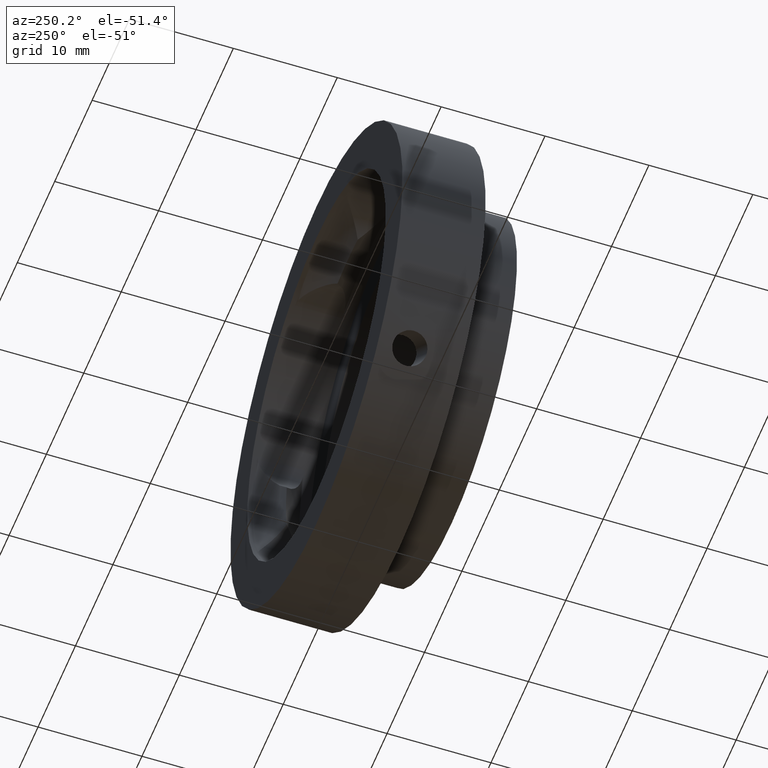
[diagram: clean part render]
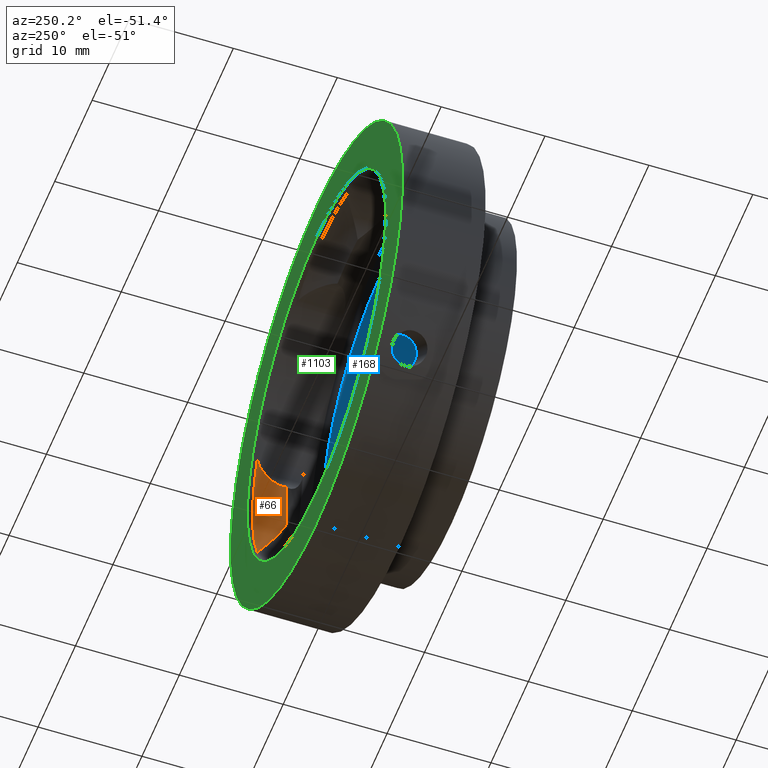
[diagram: same view with three faces highlighted in distinct colors, each labeled with its STEP entity id]
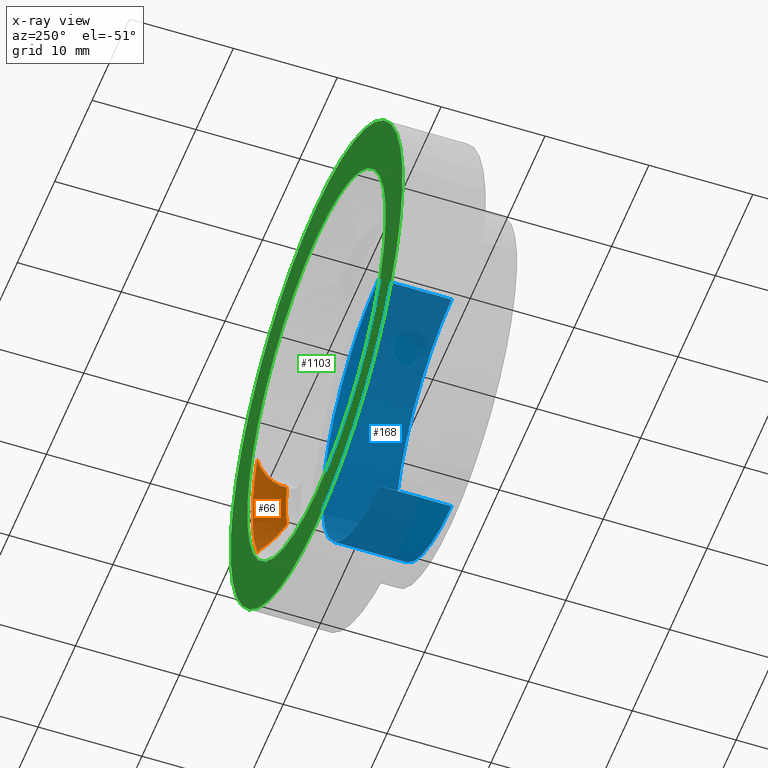
[diagram: x-ray of the same camera — body ghosted, the three highlighted faces saturated]
A machine part, auxiliary view with three faces highlighted in distinct colors.
The next image is the same camera in x-ray (body ghosted, the three faces saturated) — at least one of them is partly hidden behind the body in this view.
Their STEP definitions:

[orange] entity #66 — the highlighted toroidal blend (fillet) surface has major radius 14.6376 mm and minor (blend) radius 4 mm.
#5 = CARTESIAN_POINT ( 'NONE',  ( 17.36340583699443500, 3.269522945828823500, 6.189832400947930900 ) ) ;
#27 = ORIENTED_EDGE ( 'NONE', *, *, #975, .F. ) ;
#65 = CARTESIAN_POINT ( 'NONE',  ( 17.25436046013609500, 2.071636449859518300, -4.342260360355066200 ) ) ;
#66 = ADVANCED_FACE ( 'NONE', ( #1219 ), #122, .F. ) ;
#85 = VERTEX_POINT ( 'NONE', #407 ) ;
#100 = CARTESIAN_POINT ( 'NONE',  ( 17.13059303483644400, 1.831773841888893800, 3.990437708296160000 ) ) ;
#117 = DIRECTION ( 'NONE',  ( -0.0000000000000000000, 1.000000000000000000, -0.0000000000000000000 ) ) ;
#122 = TOROIDAL_SURFACE ( 'NONE', #361, 14.63755391998808100, 4.000000000000000000 ) ;
#127 = CARTESIAN_POINT ( 'NONE',  ( 0.0000000000000000000, 4.536678175484937900, 0.0000000000000000000 ) ) ;
#153 = CARTESIAN_POINT ( 'NONE',  ( 16.79154448145637000, 1.376648082875351800, -3.309383978498544800 ) ) ;
#159 = CARTESIAN_POINT ( 'NONE',  ( 16.56711234315650600, 1.172054448431502300, -2.991469206254887800 ) ) ;
#166 = EDGE_CURVE ( 'NONE', #817, #358, #218, .T. ) ;
#218 = CIRCLE ( 'NONE', #876, 18.50000000000000400 ) ;
#244 = CARTESIAN_POINT ( 'NONE',  ( 17.37573465897290200, 2.439475657725489500, -4.878601936514678000 ) ) ;
#249 = CARTESIAN_POINT ( 'NONE',  ( 17.39208216788538100, 3.160417594367911600, -5.994942858208657000 ) ) ;
#256 = CARTESIAN_POINT ( 'NONE',  ( 16.42080530397895900, 1.083257676839831200, 2.841928745961724200 ) ) ;
#278 = CARTESIAN_POINT ( 'NONE',  ( 17.29381032218392300, 3.396654395817721600, 6.492012457404842800 ) ) ;
#290 = CARTESIAN_POINT ( 'NONE',  ( 17.39181581353226800, 3.161636105778478500, 5.997083040570745800 ) ) ;
#343 = CARTESIAN_POINT ( 'NONE',  ( 17.29443141156205900, 3.395764499672386400, -6.489612686074753600 ) ) ;
#358 = VERTEX_POINT ( 'NONE', #1012 ) ;
#361 = AXIS2_PLACEMENT_3D ( 'NONE', #127, #508, #976 ) ;
#370 = CARTESIAN_POINT ( 'NONE',  ( 17.16345939657726300, 3.496721311475400100, 6.904947751138479400 ) ) ;
#375 = CARTESIAN_POINT ( 'NONE',  ( 17.12086125011016300, 3.496721311475400600, 7.009002072654589600 ) ) ;
#380 = CARTESIAN_POINT ( 'NONE',  ( 17.42277220393309300, 2.810386111617963100, 5.429985369823798500 ) ) ;
#392 = DIRECTION ( 'NONE',  ( 0.0000000000000000000, 0.0000000000000000000, 1.000000000000000000 ) ) ;
#407 = CARTESIAN_POINT ( 'NONE',  ( 16.27822264955754900, 0.9967213114754017700, -2.696194980232658400 ) ) ;
#418 = VERTEX_POINT ( 'NONE', #722 ) ;
#436 = CARTESIAN_POINT ( 'NONE',  ( 16.27822264955754900, 0.9967213114754017700, -2.696194980232658400 ) ) ;
#443 = CARTESIAN_POINT ( 'NONE',  ( 17.12086125011016300, 3.496721311475400600, -7.009002072654589600 ) ) ;
#467 = CARTESIAN_POINT ( 'NONE',  ( 16.55061297075514700, 1.179423159652337200, 2.997086635570533500 ) ) ;
#470 = CARTESIAN_POINT ( 'NONE',  ( 17.42170559750249500, 2.932331705851900100, 5.616708695620792100 ) ) ;
#476 = ORIENTED_EDGE ( 'NONE', *, *, #166, .T. ) ;
#484 = CARTESIAN_POINT ( 'NONE',  ( 17.26637112657476800, 3.432225387919169100, 6.593454132979299100 ) ) ;
#502 = DIRECTION ( 'NONE',  ( -0.0000000000000000000, 1.000000000000000000, -0.0000000000000000000 ) ) ;
#508 = DIRECTION ( 'NONE',  ( -0.0000000000000000000, 1.000000000000000000, -0.0000000000000000000 ) ) ;
#514 = CARTESIAN_POINT ( 'NONE',  ( 0.0000000000000000000, 3.496721311475400600, 0.0000000000000000000 ) ) ;
#542 = CARTESIAN_POINT ( 'NONE',  ( 17.26663287005815300, 3.431996719209195100, -6.592597498048188100 ) ) ;
#543 = CARTESIAN_POINT ( 'NONE',  ( 17.20134099735957300, 3.482493921932077200, -6.799716323677683900 ) ) ;
#588 = CARTESIAN_POINT ( 'NONE',  ( 0.0000000000000000000, 0.9967213114754017700, 0.0000000000000000000 ) ) ;
#596 = EDGE_LOOP ( 'NONE', ( #27, #1210, #476, #847 ) ) ;
#626 = CARTESIAN_POINT ( 'NONE',  ( 17.16304562249889200, 3.496721311475398800, -6.905958475420088200 ) ) ;
#633 = CARTESIAN_POINT ( 'NONE',  ( 17.13010007589782500, 1.830906347312718700, -3.989161027966543000 ) ) ;
#661 = CARTESIAN_POINT ( 'NONE',  ( 16.88157682170986400, 1.491401494846170500, 3.481859580618646500 ) ) ;
#666 = CARTESIAN_POINT ( 'NONE',  ( 17.40005995960788400, 2.565497703908632900, 5.062972195141791000 ) ) ;
#707 = CIRCLE ( 'NONE', #861, 16.50000000000000400 ) ;
#719 = CARTESIAN_POINT ( 'NONE',  ( 17.36391773417061300, 3.268089162794297800, -6.187004466313776000 ) ) ;
#722 = CARTESIAN_POINT ( 'NONE',  ( 16.27822264955754900, 0.9967213114754017700, 2.696194980232658400 ) ) ;
#735 = CARTESIAN_POINT ( 'NONE',  ( 17.42273638806526400, 2.808454470466621400, -5.427035956763838000 ) ) ;
#812 = EDGE_CURVE ( 'NONE', #418, #817, #1136, .T. ) ;
#817 = VERTEX_POINT ( 'NONE', #853 ) ;
#845 = CARTESIAN_POINT ( 'NONE',  ( 16.78116720282785200, 1.383803078169443500, 3.317503025158117700 ) ) ;
#847 = ORIENTED_EDGE ( 'NONE', *, *, #1205, .T. ) ;
#853 = CARTESIAN_POINT ( 'NONE',  ( 17.12086125011016300, 3.496721311475400600, 7.009002072654589600 ) ) ;
#856 = CARTESIAN_POINT ( 'NONE',  ( 17.20142613376731000, 3.482401770957626900, 6.799419849856149300 ) ) ;
#861 = AXIS2_PLACEMENT_3D ( 'NONE', #588, #117, #392 ) ;
#876 = AXIS2_PLACEMENT_3D ( 'NONE', #514, #502, #1163 ) ;
#908 = CARTESIAN_POINT ( 'NONE',  ( 17.42176161910858000, 2.931068077787907000, -5.614732754411278400 ) ) ;
#941 = CARTESIAN_POINT ( 'NONE',  ( 17.05630417228517000, 1.715373747438431400, 3.818328121953583800 ) ) ;
#951 = B_SPLINE_CURVE_WITH_KNOTS ( 'NONE', 3,
 ( #443, #626, #543, #542, #343, #719, #249, #908, #735, #1011, #244, #1106, #65, #633, #995, #153, #159, #436 ),
 .UNSPECIFIED., .F., .F.,
 ( 4, 2, 2, 2, 2, 2, 2, 2, 4 ),
 ( 0.02911646445298689300, 0.02945188218109105400, 0.02978729990919521500, 0.03045813536540354500, 0.03112897082161187500, 0.03179980627782020400, 0.03247064173402852700, 0.03314147719023685700, 0.03448314810265350900 ),
 .UNSPECIFIED. ) ;
#975 = EDGE_CURVE ( 'NONE', #418, #85, #707, .T. ) ;
#976 = DIRECTION ( 'NONE',  ( 0.0000000000000000000, 0.0000000000000000000, 1.000000000000000000 ) ) ;
#995 = CARTESIAN_POINT ( 'NONE',  ( 17.05464045493920000, 1.712919933562092800, -3.814683146563612400 ) ) ;
#1011 = CARTESIAN_POINT ( 'NONE',  ( 17.39969678763881700, 2.563154542518793400, -5.059515939409064500 ) ) ;
#1012 = CARTESIAN_POINT ( 'NONE',  ( 17.12086125011016300, 3.496721311475400600, -7.009002072654589600 ) ) ;
#1041 = CARTESIAN_POINT ( 'NONE',  ( 17.30367196314879100, 2.195338139958085100, 4.522256403561802300 ) ) ;
#1106 = CARTESIAN_POINT ( 'NONE',  ( 17.30307122314359000, 2.193752640003353800, -4.519949017221381200 ) ) ;
#1107 = CARTESIAN_POINT ( 'NONE',  ( 16.27822264955754900, 0.9967213114754017700, 2.696194980232658400 ) ) ;
#1136 = B_SPLINE_CURVE_WITH_KNOTS ( 'NONE', 3,
 ( #1107, #256, #467, #845, #661, #941, #100, #1142, #1041, #1137, #666, #380, #470, #290, #5, #278, #484, #856, #370, #375 ),
 .UNSPECIFIED., .F., .F.,
 ( 4, 2, 2, 2, 2, 2, 2, 2, 2, 4 ),
 ( 0.01947316875624090600, 0.02013732411579238100, 0.02080147947534385200, 0.02146563483489532700, 0.02212979019444679900, 0.02279394555399827400, 0.02345810091354974500, 0.02412225627310121700, 0.02445433395287695600, 0.02478641163265269200 ),
 .UNSPECIFIED. ) ;
#1137 = CARTESIAN_POINT ( 'NONE',  ( 17.37627171932059500, 2.441744844110302000, 4.881920887914881200 ) ) ;
#1142 = CARTESIAN_POINT ( 'NONE',  ( 17.25445482783872100, 2.071907201204975300, 4.342653221995735000 ) ) ;
#1163 = DIRECTION ( 'NONE',  ( 0.0000000000000000000, 0.0000000000000000000, 1.000000000000000000 ) ) ;
#1205 = EDGE_CURVE ( 'NONE', #358, #85, #951, .T. ) ;
#1210 = ORIENTED_EDGE ( 'NONE', *, *, #812, .T. ) ;
#1219 = FACE_OUTER_BOUND ( 'NONE', #596, .T. ) ;

[blue] entity #168 — the highlighted cylindrical surface (partial cylindrical patch) has radius 15 mm, axis along (-0, -1, -0).
#58 = VERTEX_POINT ( 'NONE', #794 ) ;
#69 = AXIS2_PLACEMENT_3D ( 'NONE', #636, #733, #832 ) ;
#108 = CIRCLE ( 'NONE', #69, 15.00000000000000000 ) ;
#121 = DIRECTION ( 'NONE',  ( -0.0000000000000000000, -1.000000000000000000, -0.0000000000000000000 ) ) ;
#137 = DIRECTION ( 'NONE',  ( -0.0000000000000000000, -1.000000000000000000, -0.0000000000000000000 ) ) ;
#161 = DIRECTION ( 'NONE',  ( 0.0000000000000000000, 0.0000000000000000000, -1.000000000000000000 ) ) ;
#168 = ADVANCED_FACE ( 'NONE', ( #1130 ), #711, .F. ) ;
#207 = VERTEX_POINT ( 'NONE', #808 ) ;
#250 = ORIENTED_EDGE ( 'NONE', *, *, #300, .F. ) ;
#300 = EDGE_CURVE ( 'NONE', #1149, #207, #609, .T. ) ;
#301 = CARTESIAN_POINT ( 'NONE',  ( 0.0000000000000000000, 0.0000000000000000000, 0.0000000000000000000 ) ) ;
#324 = ORIENTED_EDGE ( 'NONE', *, *, #544, .F. ) ;
#357 = DIRECTION ( 'NONE',  ( -0.0000000000000000000, -1.000000000000000000, -0.0000000000000000000 ) ) ;
#368 = VECTOR ( 'NONE', #678, 1000.000000000000000 ) ;
#404 = DIRECTION ( 'NONE',  ( 0.0000000000000000000, 0.0000000000000000000, -1.000000000000000000 ) ) ;
#447 = CARTESIAN_POINT ( 'NONE',  ( 0.0000000000000000000, -2.003278688524599000, 0.0000000000000000000 ) ) ;
#451 = VERTEX_POINT ( 'NONE', #488 ) ;
#464 = ORIENTED_EDGE ( 'NONE', *, *, #928, .T. ) ;
#488 = CARTESIAN_POINT ( 'NONE',  ( 0.0000000000000000000, -9.003278688524599000, -15.00000000000000000 ) ) ;
#544 = EDGE_CURVE ( 'NONE', #207, #58, #640, .T. ) ;
#609 = CIRCLE ( 'NONE', #1151, 15.00000000000000000 ) ;
#636 = CARTESIAN_POINT ( 'NONE',  ( 0.0000000000000000000, -9.003278688524599000, 0.0000000000000000000 ) ) ;
#640 = LINE ( 'NONE', #881, #957 ) ;
#678 = DIRECTION ( 'NONE',  ( -0.0000000000000000000, -1.000000000000000000, -0.0000000000000000000 ) ) ;
#694 = CARTESIAN_POINT ( 'NONE',  ( 0.0000000000000000000, -2.003278688524599000, -15.00000000000000000 ) ) ;
#711 = CYLINDRICAL_SURFACE ( 'NONE', #937, 15.00000000000000000 ) ;
#733 = DIRECTION ( 'NONE',  ( -0.0000000000000000000, -1.000000000000000000, -0.0000000000000000000 ) ) ;
#774 = EDGE_CURVE ( 'NONE', #451, #58, #108, .T. ) ;
#794 = CARTESIAN_POINT ( 'NONE',  ( 1.836970198721029600E-015, -9.003278688524599000, 15.00000000000000000 ) ) ;
#808 = CARTESIAN_POINT ( 'NONE',  ( 1.836970198721029600E-015, -2.003278688524599000, 15.00000000000000000 ) ) ;
#832 = DIRECTION ( 'NONE',  ( 0.0000000000000000000, 0.0000000000000000000, -1.000000000000000000 ) ) ;
#877 = ORIENTED_EDGE ( 'NONE', *, *, #774, .T. ) ;
#878 = CARTESIAN_POINT ( 'NONE',  ( 0.0000000000000000000, 0.0000000000000000000, -15.00000000000000000 ) ) ;
#881 = CARTESIAN_POINT ( 'NONE',  ( 1.836970198721029600E-015, 0.0000000000000000000, 15.00000000000000000 ) ) ;
#928 = EDGE_CURVE ( 'NONE', #1149, #451, #1016, .T. ) ;
#937 = AXIS2_PLACEMENT_3D ( 'NONE', #301, #121, #404 ) ;
#957 = VECTOR ( 'NONE', #137, 1000.000000000000000 ) ;
#1016 = LINE ( 'NONE', #878, #368 ) ;
#1130 = FACE_OUTER_BOUND ( 'NONE', #1148, .T. ) ;
#1148 = EDGE_LOOP ( 'NONE', ( #324, #250, #464, #877 ) ) ;
#1149 = VERTEX_POINT ( 'NONE', #694 ) ;
#1151 = AXIS2_PLACEMENT_3D ( 'NONE', #447, #357, #161 ) ;

[green] entity #1103 — the highlighted planar face has unit normal (0, -1, -0).
#28 = DIRECTION ( 'NONE',  ( 0.0000000000000000000, 0.0000000000000000000, -1.000000000000000000 ) ) ;
#54 = EDGE_CURVE ( 'NONE', #360, #614, #989, .T. ) ;
#59 = DIRECTION ( 'NONE',  ( 0.0000000000000000000, 0.0000000000000000000, -1.000000000000000000 ) ) ;
#126 = ORIENTED_EDGE ( 'NONE', *, *, #608, .T. ) ;
#176 = CARTESIAN_POINT ( 'NONE',  ( 2.265596578422603400E-015, 3.996721311475401900, 18.50000000000000000 ) ) ;
#192 = AXIS2_PLACEMENT_3D ( 'NONE', #979, #587, #779 ) ;
#201 = CIRCLE ( 'NONE', #416, 23.00000000000000000 ) ;
#231 = FACE_OUTER_BOUND ( 'NONE', #430, .T. ) ;
#288 = AXIS2_PLACEMENT_3D ( 'NONE', #419, #326, #515 ) ;
#293 = CIRCLE ( 'NONE', #748, 18.50000000000000000 ) ;
#304 = ORIENTED_EDGE ( 'NONE', *, *, #54, .F. ) ;
#311 = DIRECTION ( 'NONE',  ( -0.0000000000000000000, -1.000000000000000000, -0.0000000000000000000 ) ) ;
#326 = DIRECTION ( 'NONE',  ( -0.0000000000000000000, -1.000000000000000000, -0.0000000000000000000 ) ) ;
#360 = VERTEX_POINT ( 'NONE', #1202 ) ;
#416 = AXIS2_PLACEMENT_3D ( 'NONE', #603, #311, #610 ) ;
#417 = DIRECTION ( 'NONE',  ( 0.0000000000000000000, -1.000000000000000000, -0.0000000000000000000 ) ) ;
#419 = CARTESIAN_POINT ( 'NONE',  ( 0.0000000000000000000, 3.996721311475401900, 0.0000000000000000000 ) ) ;
#430 = EDGE_LOOP ( 'NONE', ( #479, #304 ) ) ;
#437 = EDGE_CURVE ( 'NONE', #873, #788, #293, .T. ) ;
#479 = ORIENTED_EDGE ( 'NONE', *, *, #1108, .F. ) ;
#493 = CARTESIAN_POINT ( 'NONE',  ( 0.0000000000000000000, 3.996721311475401900, 0.0000000000000000000 ) ) ;
#515 = DIRECTION ( 'NONE',  ( 0.0000000000000000000, 0.0000000000000000000, -1.000000000000000000 ) ) ;
#536 = CIRCLE ( 'NONE', #288, 18.50000000000000000 ) ;
#587 = DIRECTION ( 'NONE',  ( -0.0000000000000000000, -1.000000000000000000, -0.0000000000000000000 ) ) ;
#603 = CARTESIAN_POINT ( 'NONE',  ( 0.0000000000000000000, 3.996721311475401000, 0.0000000000000000000 ) ) ;
#608 = EDGE_CURVE ( 'NONE', #788, #873, #536, .T. ) ;
#610 = DIRECTION ( 'NONE',  ( 0.0000000000000000000, 0.0000000000000000000, -1.000000000000000000 ) ) ;
#614 = VERTEX_POINT ( 'NONE', #894 ) ;
#619 = CARTESIAN_POINT ( 'NONE',  ( -18.50000000000000000, 3.996721311475401000, 0.0000000000000000000 ) ) ;
#625 = ORIENTED_EDGE ( 'NONE', *, *, #437, .T. ) ;
#669 = DIRECTION ( 'NONE',  ( -0.0000000000000000000, -1.000000000000000000, -0.0000000000000000000 ) ) ;
#748 = AXIS2_PLACEMENT_3D ( 'NONE', #493, #669, #28 ) ;
#779 = DIRECTION ( 'NONE',  ( 0.0000000000000000000, 0.0000000000000000000, -1.000000000000000000 ) ) ;
#788 = VERTEX_POINT ( 'NONE', #176 ) ;
#807 = PLANE ( 'NONE',  #1075 ) ;
#873 = VERTEX_POINT ( 'NONE', #1039 ) ;
#894 = CARTESIAN_POINT ( 'NONE',  ( 0.0000000000000000000, 3.996721311475401000, -23.00000000000000000 ) ) ;
#917 = EDGE_LOOP ( 'NONE', ( #625, #126 ) ) ;
#979 = CARTESIAN_POINT ( 'NONE',  ( 0.0000000000000000000, 3.996721311475401000, 0.0000000000000000000 ) ) ;
#989 = CIRCLE ( 'NONE', #192, 23.00000000000000000 ) ;
#1039 = CARTESIAN_POINT ( 'NONE',  ( 0.0000000000000000000, 3.996721311475401900, -18.50000000000000000 ) ) ;
#1044 = FACE_BOUND ( 'NONE', #917, .T. ) ;
#1075 = AXIS2_PLACEMENT_3D ( 'NONE', #619, #417, #59 ) ;
#1103 = ADVANCED_FACE ( 'NONE', ( #231, #1044 ), #807, .F. ) ;
#1108 = EDGE_CURVE ( 'NONE', #614, #360, #201, .T. ) ;
#1202 = CARTESIAN_POINT ( 'NONE',  ( 2.816687638038912400E-015, 3.996721311475401000, 23.00000000000000000 ) ) ;